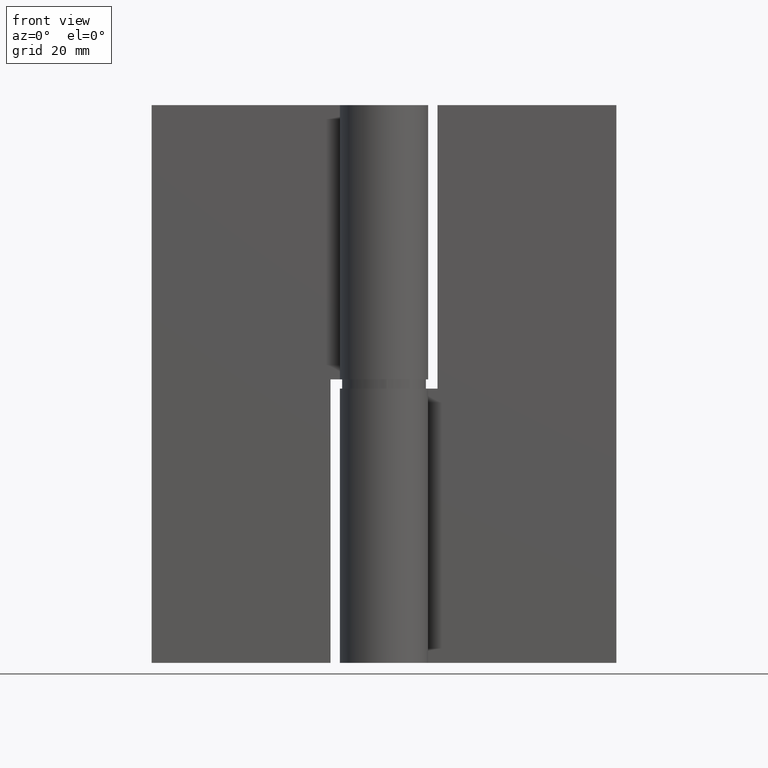
[diagram: clean part render]
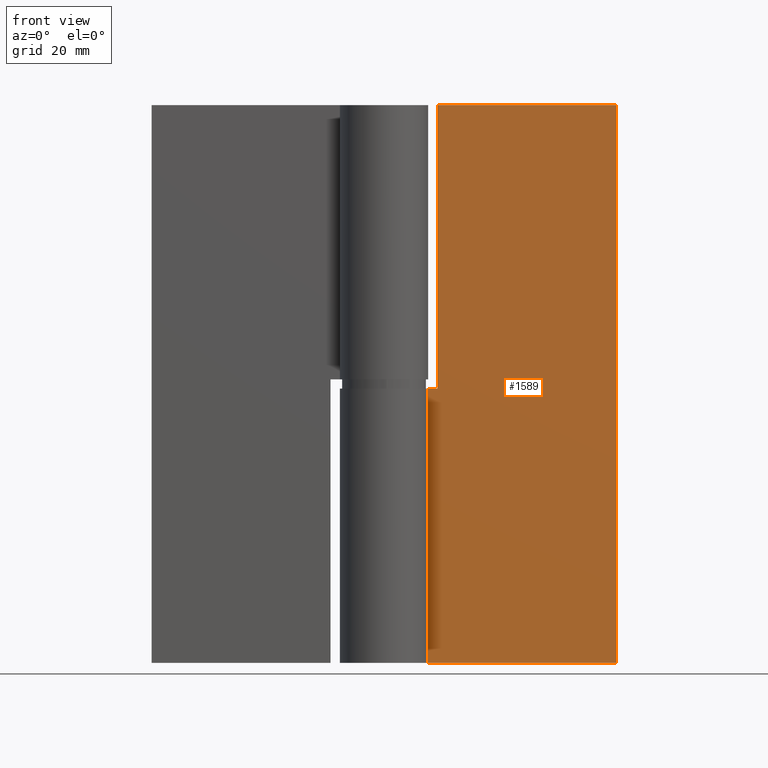
[diagram: same view with one face highlighted and labeled with its STEP entity id]
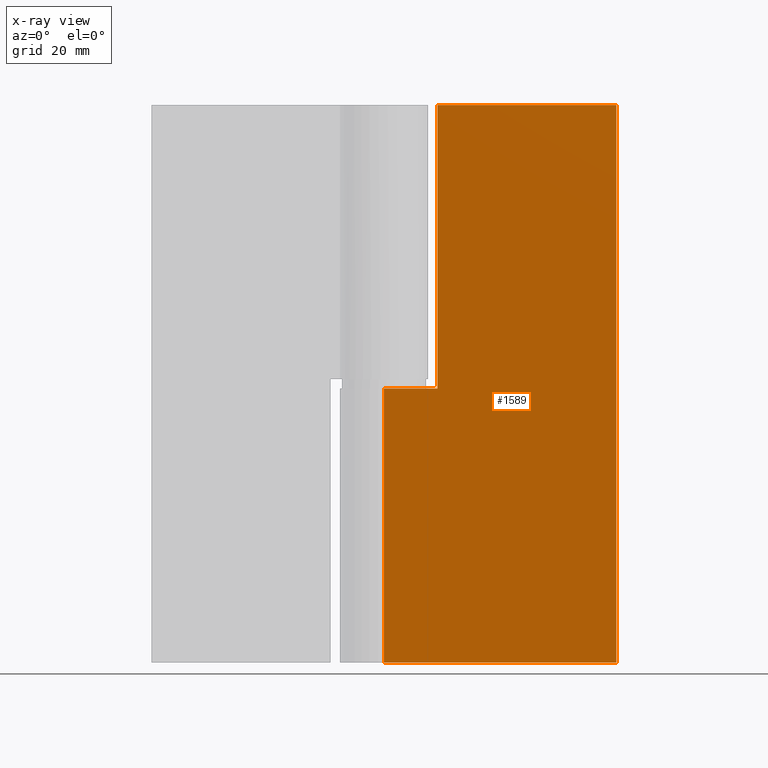
[diagram: x-ray of the same camera — body ghosted, the highlighted face saturated]
A machine part, front view. The second image highlights one B-rep face of the part: STEP entity #1589.
The next image is the same camera in x-ray: the body ghosted, the highlighted face saturated — about 0% of this face is hidden behind the body in this view.
In plain terms, the highlighted face is a freeform B-spline surface patch.
Its self-contained STEP definition (entity closure, byte-faithful):
#1278=CARTESIAN_POINT('',(11.500000000000000,5.0,59.0));
#1279=VERTEX_POINT('',#1278);
#1280=CARTESIAN_POINT('',(11.500000000000000,5.0,120.000015000000000));
#1281=VERTEX_POINT('',#1280);
#1282=CARTESIAN_POINT('',(11.500000000000000,5.0,59.0));
#1283=CARTESIAN_POINT('',(11.500000000000000,5.0,120.000015000000000));
#1284=QUASI_UNIFORM_CURVE('',1,(#1282,#1283),.UNSPECIFIED.,.F.,.U.);
#1285=EDGE_CURVE('',#1279,#1281,#1284,.T.);
#1314=CARTESIAN_POINT('',(0.0,5.0,59.0));
#1315=VERTEX_POINT('',#1314);
#1316=CARTESIAN_POINT('',(0.0,5.0,59.0));
#1317=CARTESIAN_POINT('',(11.500000000000000,5.0,59.0));
#1318=QUASI_UNIFORM_CURVE('',1,(#1316,#1317),.UNSPECIFIED.,.F.,.U.);
#1319=EDGE_CURVE('',#1315,#1279,#1318,.T.);
#1392=CARTESIAN_POINT('',(50.0,5.0,120.000015000000000));
#1393=VERTEX_POINT('',#1392);
#1394=CARTESIAN_POINT('',(11.500000000000000,5.0,120.000015000000000));
#1395=CARTESIAN_POINT('',(50.0,5.0,120.000015000000000));
#1396=QUASI_UNIFORM_CURVE('',1,(#1394,#1395),.UNSPECIFIED.,.F.,.U.);
#1397=EDGE_CURVE('',#1281,#1393,#1396,.T.);
#1414=CARTESIAN_POINT('',(0.0,5.0,0.0));
#1415=VERTEX_POINT('',#1414);
#1470=CARTESIAN_POINT('',(50.0,5.0,0.0));
#1471=VERTEX_POINT('',#1470);
#1477=CARTESIAN_POINT('',(0.0,5.0,0.0));
#1478=CARTESIAN_POINT('',(50.0,5.0,0.0));
#1479=QUASI_UNIFORM_CURVE('',1,(#1477,#1478),.UNSPECIFIED.,.F.,.U.);
#1480=EDGE_CURVE('',#1415,#1471,#1479,.T.);
#1562=CARTESIAN_POINT('',(50.0,5.0,0.0));
#1563=CARTESIAN_POINT('',(50.0,5.0,120.000015000000000));
#1564=QUASI_UNIFORM_CURVE('',1,(#1562,#1563),.UNSPECIFIED.,.F.,.U.);
#1565=EDGE_CURVE('',#1471,#1393,#1564,.T.);
#1572=CARTESIAN_POINT('',(-2.497499903090299,5.0,125.994016643140990));
#1573=CARTESIAN_POINT('',(-2.497499903090299,5.0,-5.994003788908462));
#1574=CARTESIAN_POINT('',(52.497501244194808,5.0,125.994016643140990));
#1575=CARTESIAN_POINT('',(52.497501244194808,5.0,-5.994003788908462));
#1576=B_SPLINE_SURFACE_WITH_KNOTS('',1,1,((#1572,#1574),(#1573,#1575)),.UNSPECIFIED.,.F.,.F.,.U.,(2,2),(2,2),(0.0,131.988020432049500),(0.0,54.995001147285109),.UNSPECIFIED.);
#1577=ORIENTED_EDGE('',*,*,#1285,.F.);
#1578=ORIENTED_EDGE('',*,*,#1319,.F.);
#1579=CARTESIAN_POINT('',(0.0,5.0,0.0));
#1580=CARTESIAN_POINT('',(0.0,5.0,59.0));
#1581=QUASI_UNIFORM_CURVE('',1,(#1579,#1580),.UNSPECIFIED.,.F.,.U.);
#1582=EDGE_CURVE('',#1415,#1315,#1581,.T.);
#1583=ORIENTED_EDGE('',*,*,#1582,.F.);
#1584=ORIENTED_EDGE('',*,*,#1480,.T.);
#1585=ORIENTED_EDGE('',*,*,#1565,.T.);
#1586=ORIENTED_EDGE('',*,*,#1397,.F.);
#1587=EDGE_LOOP('',(#1577,#1578,#1583,#1584,#1585,#1586));
#1588=FACE_OUTER_BOUND('',#1587,.T.);
#1589=ADVANCED_FACE('',(#1588),#1576,.T.);